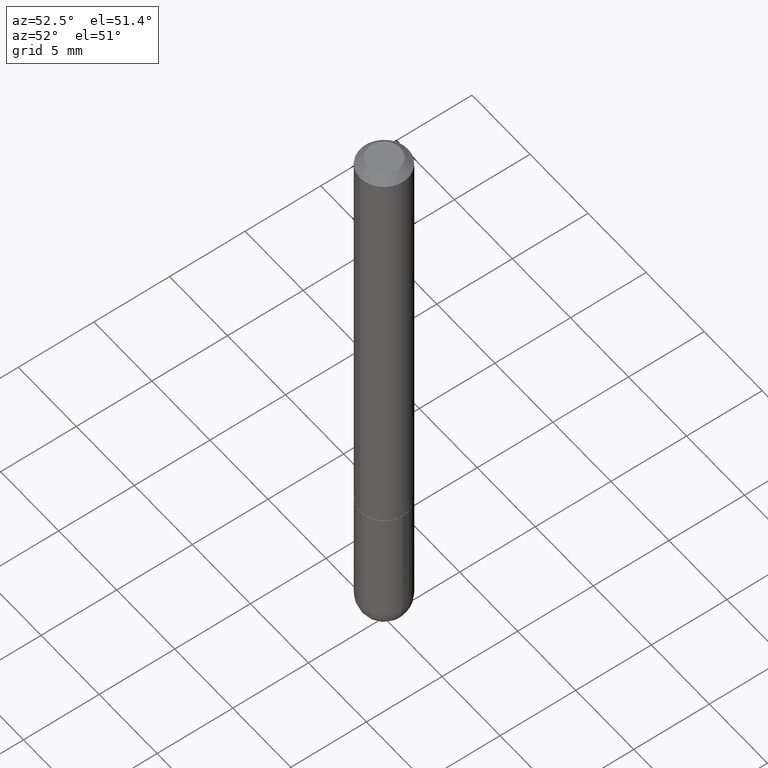
[diagram: clean part render]
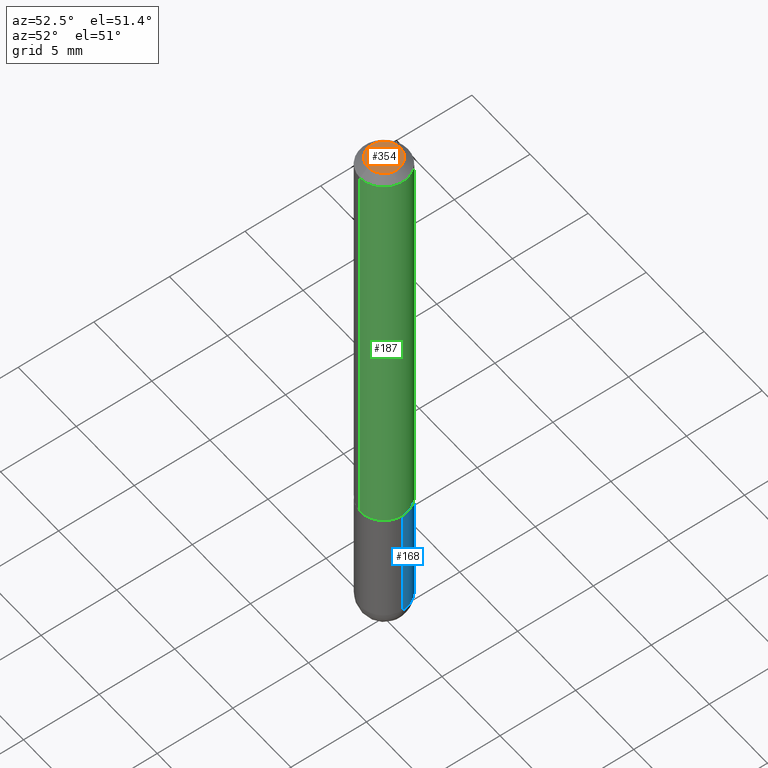
[diagram: same view with three faces highlighted in distinct colors, each labeled with its STEP entity id]
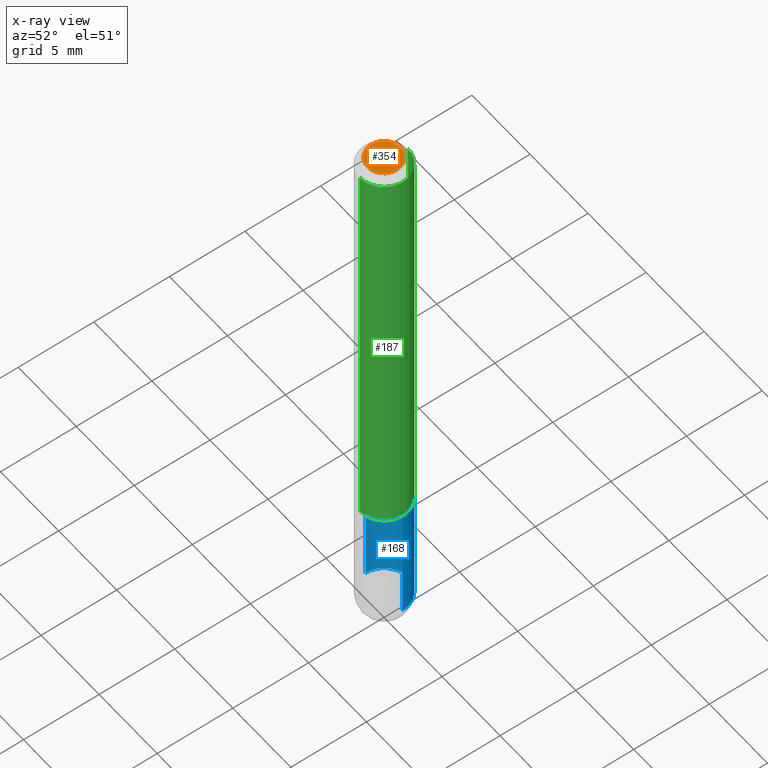
[diagram: x-ray of the same camera — body ghosted, the three highlighted faces saturated]
A machine part, auxiliary view with three faces highlighted in distinct colors.
The next image is the same camera in x-ray (body ghosted, the three faces saturated) — at least one of them is partly hidden behind the body in this view.
Their STEP definitions:

[orange] entity #354 — the highlighted planar face has unit normal (0, -0, -1).
#1 = CARTESIAN_POINT ( 'NONE',  ( -7.232524754975784506E-45, 1.015221231477239649E-30, 2.932652604402424612E-16 ) ) ;
#20 = VERTEX_POINT ( 'NONE', #312 ) ;
#77 = EDGE_CURVE ( 'NONE', #20, #178, #264, .T. ) ;
#96 = CARTESIAN_POINT ( 'NONE',  ( 3.666055405785276810E-16, 0.04249999999999961448, 1.461394049160960420E-16 ) ) ;
#111 = CIRCLE ( 'NONE', #119, 0.04249999999999961448 ) ;
#119 = AXIS2_PLACEMENT_3D ( 'NONE', #1, #162, #201 ) ;
#127 = AXIS2_PLACEMENT_3D ( 'NONE', #228, #351, #131 ) ;
#131 = DIRECTION ( 'NONE',  ( -6.982962677686266711E-15, -1.000000000000000000, 3.461784835862300242E-15 ) ) ;
#162 = DIRECTION ( 'NONE',  ( -2.466205763382440609E-29, 3.461784835862300242E-15, 1.000000000000000000 ) ) ;
#178 = VERTEX_POINT ( 'NONE', #96 ) ;
#201 = DIRECTION ( 'NONE',  ( -6.982962677686266711E-15, -1.000000000000000000, 3.461784835862300242E-15 ) ) ;
#219 = ORIENTED_EDGE ( 'NONE', *, *, #77, .T. ) ;
#224 = DIRECTION ( 'NONE',  ( 2.466205763382440609E-29, -3.461784835862300242E-15, -1.000000000000000000 ) ) ;
#228 = CARTESIAN_POINT ( 'NONE',  ( -7.232524754975784506E-45, 1.015221231477239649E-30, 2.932652604402424612E-16 ) ) ;
#264 = CIRCLE ( 'NONE', #127, 0.04249999999999961448 ) ;
#312 = CARTESIAN_POINT ( 'NONE',  ( -3.601761448830035670E-16, -0.04249999999999961448, 4.403911159643889051E-16 ) ) ;
#343 = PLANE ( 'NONE',  #355 ) ;
#345 = DIRECTION ( 'NONE',  ( 6.982962677686265922E-15, 1.000000000000000000, -3.461784835862300242E-15 ) ) ;
#351 = DIRECTION ( 'NONE',  ( -2.466205763382440609E-29, 3.461784835862300242E-15, 1.000000000000000000 ) ) ;
#354 = ADVANCED_FACE ( 'NONE', ( #374 ), #343, .F. ) ;
#355 = AXIS2_PLACEMENT_3D ( 'NONE', #377, #224, #345 ) ;
#365 = EDGE_LOOP ( 'NONE', ( #366, #219 ) ) ;
#366 = ORIENTED_EDGE ( 'NONE', *, *, #373, .T. ) ;
#373 = EDGE_CURVE ( 'NONE', #178, #20, #111, .T. ) ;
#374 = FACE_OUTER_BOUND ( 'NONE', #365, .T. ) ;
#377 = CARTESIAN_POINT ( 'NONE',  ( 2.967759138016636432E-16, 0.04249999999999961448, -4.932253040251829107E-19 ) ) ;

[blue] entity #168 — the highlighted cylindrical surface (edge-blend (fillet) strip) has radius 1.5875 mm, axis along (-0, 0, 1).
#2 = DIRECTION ( 'NONE',  ( -2.445468806185136597E-29, 3.491481338843145583E-15, 1.000000000000000000 ) ) ;
#19 = DIRECTION ( 'NONE',  ( -2.445468806185136877E-29, 3.491481338843145188E-15, 1.000000000000000000 ) ) ;
#21 = EDGE_CURVE ( 'NONE', #49, #392, #240, .T. ) ;
#23 = CARTESIAN_POINT ( 'NONE',  ( 3.515361408891134418E-29, -5.019004424587023131E-15, -1.437500000000000222 ) ) ;
#41 = EDGE_CURVE ( 'NONE', #392, #52, #256, .T. ) ;
#47 = ORIENTED_EDGE ( 'NONE', *, *, #41, .T. ) ;
#49 = VERTEX_POINT ( 'NONE', #195 ) ;
#52 = VERTEX_POINT ( 'NONE', #381 ) ;
#62 = VECTOR ( 'NONE', #88, 39.37007874015748143 ) ;
#88 = DIRECTION ( 'NONE',  ( -2.445468806185136877E-29, 3.491481338843145188E-15, 1.000000000000000000 ) ) ;
#132 = CARTESIAN_POINT ( 'NONE',  ( -0.06249999999999995143, -4.029371255542718167E-15, -1.437500000000000222 ) ) ;
#165 = CARTESIAN_POINT ( 'NONE',  ( 0.000000000000000000, 0.000000000000000000, 0.000000000000000000 ) ) ;
#168 = ADVANCED_FACE ( 'NONE', ( #378 ), #296, .T. ) ;
#182 = EDGE_CURVE ( 'NONE', #363, #304, #408, .T. ) ;
#189 = AXIS2_PLACEMENT_3D ( 'NONE', #165, #2, #199 ) ;
#195 = CARTESIAN_POINT ( 'NONE',  ( 4.364351673554256397E-16, 0.06249999999999480971, -1.437500000000000444 ) ) ;
#196 = AXIS2_PLACEMENT_3D ( 'NONE', #384, #353, #263 ) ;
#199 = DIRECTION ( 'NONE',  ( 1.000000000000000000, -6.982962677686267499E-15, 4.876176775795936353E-29 ) ) ;
#203 = CIRCLE ( 'NONE', #196, 0.06249999999999995143 ) ;
#218 = DIRECTION ( 'NONE',  ( -2.445468806185136597E-29, 3.491481338843145583E-15, 1.000000000000000000 ) ) ;
#240 = CIRCLE ( 'NONE', #391, 0.06249999999999995143 ) ;
#243 = ORIENTED_EDGE ( 'NONE', *, *, #395, .T. ) ;
#256 = LINE ( 'NONE', #346, #62 ) ;
#263 = DIRECTION ( 'NONE',  ( 1.000000000000000000, -6.982962677686268288E-15, 0.000000000000000000 ) ) ;
#283 = CARTESIAN_POINT ( 'NONE',  ( 0.06249999999999997918, -4.364351673553915708E-16, 3.047610484872459170E-30 ) ) ;
#296 = CYLINDRICAL_SURFACE ( 'NONE', #189, 0.06249999999999997918 ) ;
#304 = VERTEX_POINT ( 'NONE', #396 ) ;
#315 = DIRECTION ( 'NONE',  ( 1.000000000000000000, -6.982962677686269077E-15, 0.000000000000000000 ) ) ;
#319 = EDGE_CURVE ( 'NONE', #304, #52, #406, .T. ) ;
#331 = ORIENTED_EDGE ( 'NONE', *, *, #319, .F. ) ;
#341 = ORIENTED_EDGE ( 'NONE', *, *, #182, .F. ) ;
#342 = VECTOR ( 'NONE', #19, 39.37007874015748143 ) ;
#346 = CARTESIAN_POINT ( 'NONE',  ( -0.06249999999999997918, 4.440892098500624683E-16, -3.074334431409315413E-30 ) ) ;
#347 = CARTESIAN_POINT ( 'NONE',  ( 2.751152406958278111E-29, -3.927916506198538435E-15, -1.124999999999999778 ) ) ;
#349 = CARTESIAN_POINT ( 'NONE',  ( 0.06249999999999995143, -4.909895632748172453E-15, -1.437500000000000222 ) ) ;
#353 = DIRECTION ( 'NONE',  ( -2.445468806185136597E-29, 3.491481338843145583E-15, 1.000000000000000000 ) ) ;
#363 = VERTEX_POINT ( 'NONE', #349 ) ;
#371 = DIRECTION ( 'NONE',  ( -2.445468806185136597E-29, 3.491481338843145583E-15, 1.000000000000000000 ) ) ;
#378 = FACE_OUTER_BOUND ( 'NONE', #405, .T. ) ;
#381 = CARTESIAN_POINT ( 'NONE',  ( -0.06250000000000001388, -4.029371255542718167E-15, -1.124999999999999778 ) ) ;
#384 = CARTESIAN_POINT ( 'NONE',  ( 3.515361408891134418E-29, -5.019004424587023131E-15, -1.437500000000000222 ) ) ;
#385 = AXIS2_PLACEMENT_3D ( 'NONE', #347, #218, #315 ) ;
#389 = ORIENTED_EDGE ( 'NONE', *, *, #21, .T. ) ;
#391 = AXIS2_PLACEMENT_3D ( 'NONE', #23, #371, #412 ) ;
#392 = VERTEX_POINT ( 'NONE', #132 ) ;
#395 = EDGE_CURVE ( 'NONE', #363, #49, #203, .T. ) ;
#396 = CARTESIAN_POINT ( 'NONE',  ( 0.06250000000000001388, -4.364351673553930105E-15, -1.124999999999999778 ) ) ;
#405 = EDGE_LOOP ( 'NONE', ( #389, #47, #331, #341, #243 ) ) ;
#406 = CIRCLE ( 'NONE', #385, 0.06250000000000001388 ) ;
#408 = LINE ( 'NONE', #283, #342 ) ;
#412 = DIRECTION ( 'NONE',  ( 1.000000000000000000, -6.982962677686268288E-15, 0.000000000000000000 ) ) ;

[green] entity #187 — the highlighted cylindrical surface (edge-blend (fillet) strip) has radius 1.5875 mm, axis along (-0, 0, 1).
#17 = CIRCLE ( 'NONE', #133, 0.06249999999999995143 ) ;
#31 = VERTEX_POINT ( 'NONE', #321 ) ;
#33 = VECTOR ( 'NONE', #89, 39.37007874015748143 ) ;
#53 = DIRECTION ( 'NONE',  ( -6.982962677686265922E-15, -1.000000000000000000, 3.461784835862299847E-15 ) ) ;
#55 = CARTESIAN_POINT ( 'NONE',  ( 4.364351673553917187E-16, 0.06249999999999988204, -0.02000000000000028491 ) ) ;
#58 = CARTESIAN_POINT ( 'NONE',  ( -4.364351673553916201E-16, -0.06250000000000000000, 2.163615522413937405E-16 ) ) ;
#71 = CIRCLE ( 'NONE', #270, 0.06250000000000005551 ) ;
#74 = AXIS2_PLACEMENT_3D ( 'NONE', #220, #87, #53 ) ;
#81 = VECTOR ( 'NONE', #318, 39.37007874015748143 ) ;
#83 = ORIENTED_EDGE ( 'NONE', *, *, #258, .F. ) ;
#85 = CARTESIAN_POINT ( 'NONE',  ( -4.287811248607198352E-16, -0.06250000000000001388, -0.01999999999999985123 ) ) ;
#87 = DIRECTION ( 'NONE',  ( -2.466205763382440609E-29, 3.461784835862300242E-15, 1.000000000000000000 ) ) ;
#89 = DIRECTION ( 'NONE',  ( -2.466205763382440609E-29, 3.461784835862300242E-15, 1.000000000000000000 ) ) ;
#104 = DIRECTION ( 'NONE',  ( -6.982962677686265133E-15, -1.000000000000000000, 4.370956789862817205E-15 ) ) ;
#117 = LINE ( 'NONE', #288, #33 ) ;
#124 = ORIENTED_EDGE ( 'NONE', *, *, #364, .T. ) ;
#125 = DIRECTION ( 'NONE',  ( -6.982962677686265922E-15, -1.000000000000000000, 3.483106191921938315E-15 ) ) ;
#133 = AXIS2_PLACEMENT_3D ( 'NONE', #285, #369, #125 ) ;
#135 = EDGE_CURVE ( 'NONE', #31, #239, #159, .T. ) ;
#142 = ORIENTED_EDGE ( 'NONE', *, *, #135, .F. ) ;
#149 = EDGE_LOOP ( 'NONE', ( #124, #281, #83, #142 ) ) ;
#159 = LINE ( 'NONE', #58, #81 ) ;
#164 = CARTESIAN_POINT ( 'NONE',  ( 2.772015278041863825E-29, -3.891046155509226174E-15, -1.124000000000000110 ) ) ;
#187 = ADVANCED_FACE ( 'NONE', ( #291 ), #251, .T. ) ;
#220 = CARTESIAN_POINT ( 'NONE',  ( 0.000000000000000000, 0.000000000000000000, 0.000000000000000000 ) ) ;
#226 = CARTESIAN_POINT ( 'NONE',  ( 4.440892098500769143E-16, 0.06249999999999615585, -1.124000000000000332 ) ) ;
#230 = EDGE_CURVE ( 'NONE', #308, #274, #117, .T. ) ;
#239 = VERTEX_POINT ( 'NONE', #85 ) ;
#251 = CYLINDRICAL_SURFACE ( 'NONE', #74, 0.06250000000000000000 ) ;
#258 = EDGE_CURVE ( 'NONE', #239, #274, #17, .T. ) ;
#270 = AXIS2_PLACEMENT_3D ( 'NONE', #164, #295, #104 ) ;
#274 = VERTEX_POINT ( 'NONE', #55 ) ;
#281 = ORIENTED_EDGE ( 'NONE', *, *, #230, .T. ) ;
#285 = CARTESIAN_POINT ( 'NONE',  ( 4.932411526764897788E-31, -6.923569671724623656E-17, -0.02000000000000006981 ) ) ;
#288 = CARTESIAN_POINT ( 'NONE',  ( 4.440892098500625669E-16, 0.06250000000000000000, -2.163615522413937405E-16 ) ) ;
#291 = FACE_OUTER_BOUND ( 'NONE', #149, .T. ) ;
#295 = DIRECTION ( 'NONE',  ( -2.466205763382440609E-29, 3.461784835862300242E-15, 1.000000000000000000 ) ) ;
#308 = VERTEX_POINT ( 'NONE', #226 ) ;
#318 = DIRECTION ( 'NONE',  ( -2.466205763382440609E-29, 3.461784835862300242E-15, 1.000000000000000000 ) ) ;
#321 = CARTESIAN_POINT ( 'NONE',  ( -4.364351673553642565E-16, -0.06250000000000394129, -1.123999999999999888 ) ) ;
#364 = EDGE_CURVE ( 'NONE', #31, #308, #71, .T. ) ;
#369 = DIRECTION ( 'NONE',  ( -2.466205763382440609E-29, 3.461784835862300242E-15, 1.000000000000000000 ) ) ;